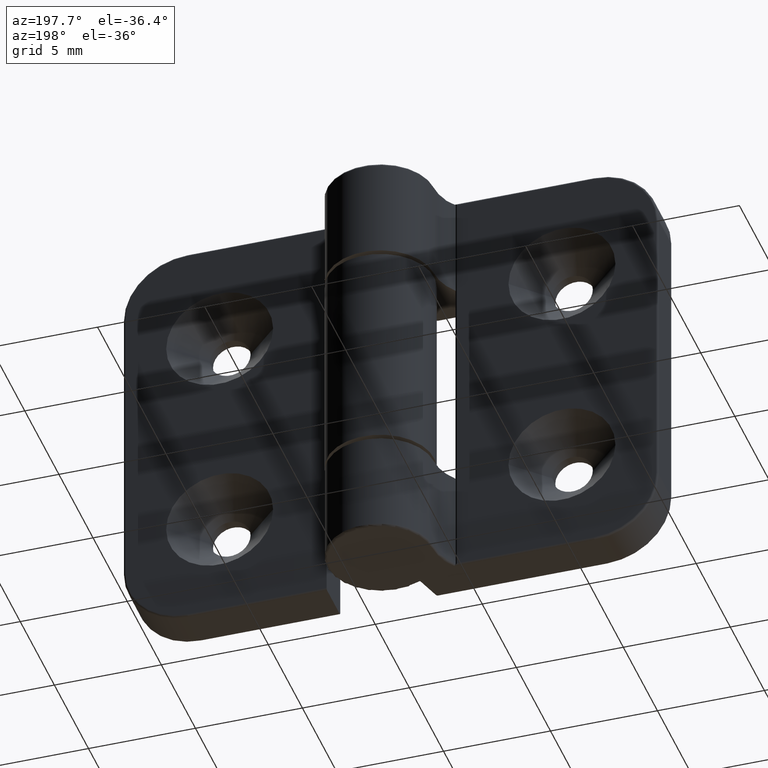
[diagram: clean part render]
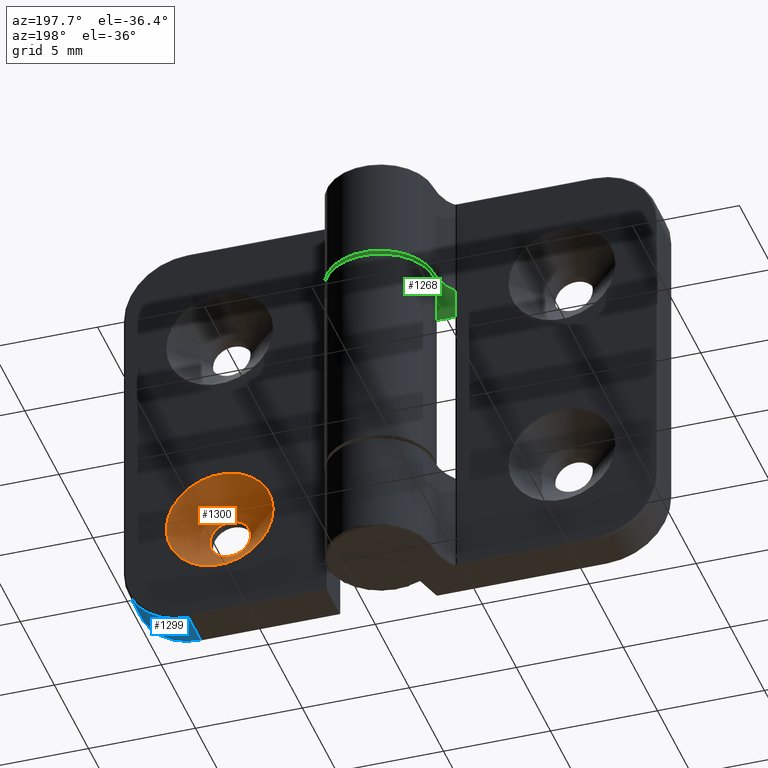
[diagram: same view with three faces highlighted in distinct colors, each labeled with its STEP entity id]
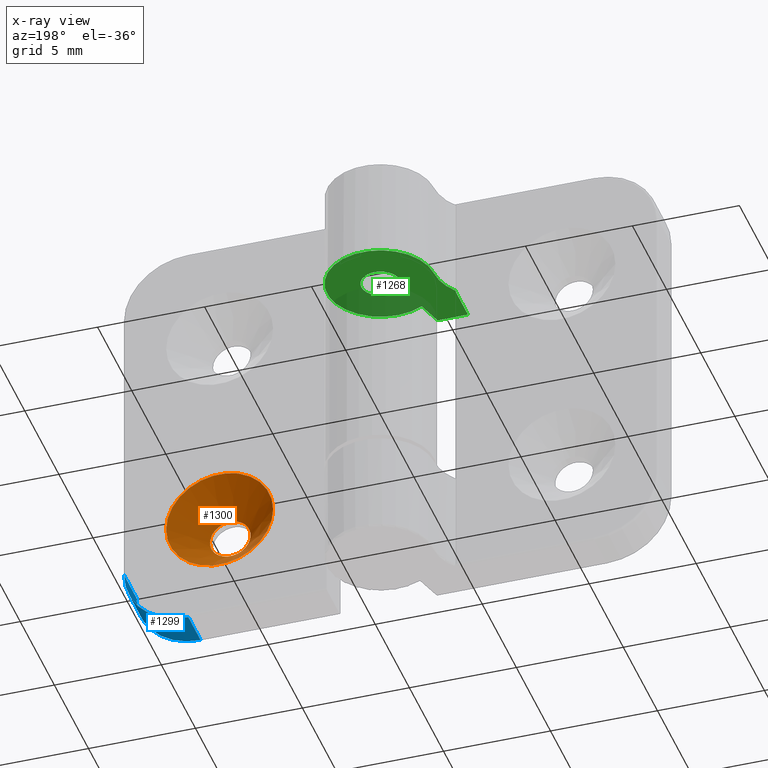
[diagram: x-ray of the same camera — body ghosted, the three highlighted faces saturated]
A machine part, auxiliary view with three faces highlighted in distinct colors.
The next image is the same camera in x-ray (body ghosted, the three faces saturated) — at least one of them is partly hidden behind the body in this view.
Their STEP definitions:

[orange] entity #1300 — the highlighted conical surface has half-angle 45 deg.
#37=CONICAL_SURFACE('',#1475,1.725,45.);
#74=FACE_BOUND('',#284,.T.);
#182=FACE_OUTER_BOUND('',#283,.T.);
#283=EDGE_LOOP('',(#1170));
#284=EDGE_LOOP('',(#1171));
#535=CIRCLE('',#1467,2.5);
#539=CIRCLE('',#1476,0.95);
#649=VERTEX_POINT('',#2351);
#653=VERTEX_POINT('',#2367);
#823=EDGE_CURVE('',#649,#649,#535,.T.);
#830=EDGE_CURVE('',#653,#653,#539,.T.);
#1170=ORIENTED_EDGE('',*,*,#823,.F.);
#1171=ORIENTED_EDGE('',*,*,#830,.F.);
#1300=ADVANCED_FACE('',(#182,#74),#37,.F.);
#1467=AXIS2_PLACEMENT_3D('',#2352,#1876,#1877);
#1475=AXIS2_PLACEMENT_3D('',#2366,#1895,#1896);
#1476=AXIS2_PLACEMENT_3D('',#2368,#1897,#1898);
#1876=DIRECTION('center_axis',(0.,-1.,0.));
#1877=DIRECTION('ref_axis',(1.,0.,0.));
#1895=DIRECTION('center_axis',(0.,1.,0.));
#1896=DIRECTION('ref_axis',(1.,0.,0.));
#1897=DIRECTION('center_axis',(0.,1.,0.));
#1898=DIRECTION('ref_axis',(1.,0.,0.));
#2351=CARTESIAN_POINT('',(-5.5,2.,5.));
#2352=CARTESIAN_POINT('Origin',(-8.,2.,5.));
#2366=CARTESIAN_POINT('Origin',(-8.,1.225,5.));
#2367=CARTESIAN_POINT('',(-7.05,0.45,5.));
#2368=CARTESIAN_POINT('Origin',(-8.,0.45,5.));

[blue] entity #1299 — the highlighted cylindrical surface (partial cylindrical patch) has radius 3 mm, axis along (-0, -1, 0).
#181=FACE_OUTER_BOUND('',#282,.T.);
#282=EDGE_LOOP('',(#1166,#1167,#1168,#1169));
#367=LINE('',#2303,#443);
#379=LINE('',#2365,#455);
#443=VECTOR('',#1816,1.8);
#455=VECTOR('',#1894,1.79999999999999);
#525=CIRCLE('',#1451,3.);
#529=CIRCLE('',#1457,3.);
#633=VERTEX_POINT('',#2295);
#635=VERTEX_POINT('',#2301);
#641=VERTEX_POINT('',#2318);
#644=VERTEX_POINT('',#2331);
#798=EDGE_CURVE('',#633,#635,#367,.T.);
#808=EDGE_CURVE('',#633,#641,#525,.T.);
#813=EDGE_CURVE('',#644,#635,#529,.T.);
#829=EDGE_CURVE('',#644,#641,#379,.T.);
#1166=ORIENTED_EDGE('',*,*,#808,.F.);
#1167=ORIENTED_EDGE('',*,*,#798,.T.);
#1168=ORIENTED_EDGE('',*,*,#813,.F.);
#1169=ORIENTED_EDGE('',*,*,#829,.T.);
#1223=CYLINDRICAL_SURFACE('',#1474,3.);
#1299=ADVANCED_FACE('',(#181),#1223,.T.);
#1451=AXIS2_PLACEMENT_3D('',#2323,#1839,#1840);
#1457=AXIS2_PLACEMENT_3D('',#2333,#1852,#1853);
#1474=AXIS2_PLACEMENT_3D('',#2364,#1892,#1893);
#1816=DIRECTION('',(-1.11022302462516E-15,1.,0.));
#1839=DIRECTION('center_axis',(5.04646829375071E-17,-1.,0.));
#1840=DIRECTION('ref_axis',(-0.707106781186548,-3.46944695195361E-17,0.707106781186548));
#1852=DIRECTION('center_axis',(0.,1.,0.));
#1853=DIRECTION('ref_axis',(-0.707106781186548,0.,0.707106781186548));
#1892=DIRECTION('center_axis',(1.11022302462516E-15,-1.,0.));
#1893=DIRECTION('ref_axis',(-0.707106781186548,-7.85046229341887E-16,0.707106781186548));
#1894=DIRECTION('',(1.11022302462516E-15,-1.,0.));
#2295=CARTESIAN_POINT('',(-9.5,0.100000000000003,10.));
#2301=CARTESIAN_POINT('',(-9.5,1.9,10.));
#2303=CARTESIAN_POINT('',(-9.5,2.75000001240543,10.));
#2318=CARTESIAN_POINT('',(-12.5,0.0999999999999995,7.));
#2323=CARTESIAN_POINT('Origin',(-9.5,0.100000000000003,7.));
#2331=CARTESIAN_POINT('',(-12.5,1.89999999999999,7.));
#2333=CARTESIAN_POINT('Origin',(-9.5,1.89999999999999,7.));
#2364=CARTESIAN_POINT('Origin',(-9.5,2.75000001240543,7.));
#2365=CARTESIAN_POINT('',(-12.5,2.75000001240543,7.));

[green] entity #1268 — the highlighted planar face has unit normal (0, 0, 1).
#65=FACE_BOUND('',#243,.T.);
#88=PLANE('',#1407);
#150=FACE_OUTER_BOUND('',#242,.T.);
#242=EDGE_LOOP('',(#1015,#1016,#1017,#1018,#1019,#1020));
#243=EDGE_LOOP('',(#1021));
#332=LINE('',#2163,#408);
#335=LINE('',#2179,#411);
#342=LINE('',#2210,#418);
#408=VECTOR('',#1665,1.425);
#411=VECTOR('',#1670,1.26852713949037);
#418=VECTOR('',#1713,1.8);
#456=CIRCLE('',#1314,0.1);
#504=CIRCLE('',#1408,2.49999999999999);
#505=CIRCLE('',#1409,2.5);
#506=CIRCLE('',#1410,0.9);
#543=VERTEX_POINT('',#1933);
#544=VERTEX_POINT('',#1934);
#566=VERTEX_POINT('',#2023);
#568=VERTEX_POINT('',#2028);
#599=VERTEX_POINT('',#2166);
#609=VERTEX_POINT('',#2219);
#610=VERTEX_POINT('',#2222);
#657=EDGE_CURVE('',#543,#544,#456,.F.);
#737=EDGE_CURVE('',#566,#568,#332,.T.);
#741=EDGE_CURVE('',#568,#599,#335,.T.);
#754=EDGE_CURVE('',#544,#566,#342,.T.);
#759=EDGE_CURVE('',#609,#543,#504,.T.);
#760=EDGE_CURVE('',#599,#609,#505,.T.);
#761=EDGE_CURVE('',#610,#610,#506,.T.);
#1015=ORIENTED_EDGE('',*,*,#737,.F.);
#1016=ORIENTED_EDGE('',*,*,#754,.F.);
#1017=ORIENTED_EDGE('',*,*,#657,.F.);
#1018=ORIENTED_EDGE('',*,*,#759,.F.);
#1019=ORIENTED_EDGE('',*,*,#760,.F.);
#1020=ORIENTED_EDGE('',*,*,#741,.F.);
#1021=ORIENTED_EDGE('',*,*,#761,.F.);
#1268=ADVANCED_FACE('',(#150,#65),#88,.F.);
#1314=AXIS2_PLACEMENT_3D('',#1935,#1497,#1498);
#1407=AXIS2_PLACEMENT_3D('',#2218,#1723,#1724);
#1408=AXIS2_PLACEMENT_3D('',#2220,#1725,#1726);
#1409=AXIS2_PLACEMENT_3D('',#2221,#1727,#1728);
#1410=AXIS2_PLACEMENT_3D('',#2223,#1729,#1730);
#1497=DIRECTION('center_axis',(6.84997909307452E-17,0.,1.));
#1498=DIRECTION('ref_axis',(0.707106781186548,0.707106781186548,0.));
#1665=DIRECTION('',(1.,5.04646829375071E-17,-6.84997909307452E-17));
#1670=DIRECTION('',(0.279999999999998,0.96,-1.91799414606085E-17));
#1713=DIRECTION('',(0.,-1.,0.));
#1723=DIRECTION('center_axis',(6.84997909307452E-17,0.,1.));
#1724=DIRECTION('ref_axis',(1.,0.,-8.88178419700125E-17));
#1725=DIRECTION('center_axis',(-6.84997909307452E-17,0.,-1.));
#1726=DIRECTION('ref_axis',(-0.799999999999998,0.600000000000002,0.));
#1727=DIRECTION('center_axis',(6.84997909307452E-17,0.,1.));
#1728=DIRECTION('ref_axis',(1.,0.,0.));
#1729=DIRECTION('center_axis',(-6.84997909307452E-17,0.,-1.));
#1730=DIRECTION('ref_axis',(-1.,0.,0.));
#1933=CARTESIAN_POINT('',(-3.02545111117092,1.96665180548454,5.2));
#1934=CARTESIAN_POINT('',(-3.,1.9,5.2));
#1935=CARTESIAN_POINT('Origin',(-3.1,1.9,5.2));
#2023=CARTESIAN_POINT('',(-3.,0.1,5.2));
#2028=CARTESIAN_POINT('',(-1.575,0.1,5.2));
#2163=CARTESIAN_POINT('',(-7.75,0.0999999999999998,5.2));
#2166=CARTESIAN_POINT('',(-1.2198124009427,1.31778605391075,5.2));
#2179=CARTESIAN_POINT('',(-1.386,0.748000000000002,5.2));
#2210=CARTESIAN_POINT('',(-3.,2.,5.2));
#2218=CARTESIAN_POINT('Origin',(-3.,2.,5.2));
#2219=CARTESIAN_POINT('',(-2.5,3.5,5.2));
#2220=CARTESIAN_POINT('Origin',(-4.99999999999999,3.5,5.2));
#2221=CARTESIAN_POINT('Origin',(0.,3.5,5.2));
#2222=CARTESIAN_POINT('',(0.9,3.5,5.2));
#2223=CARTESIAN_POINT('Origin',(0.,3.5,5.2));